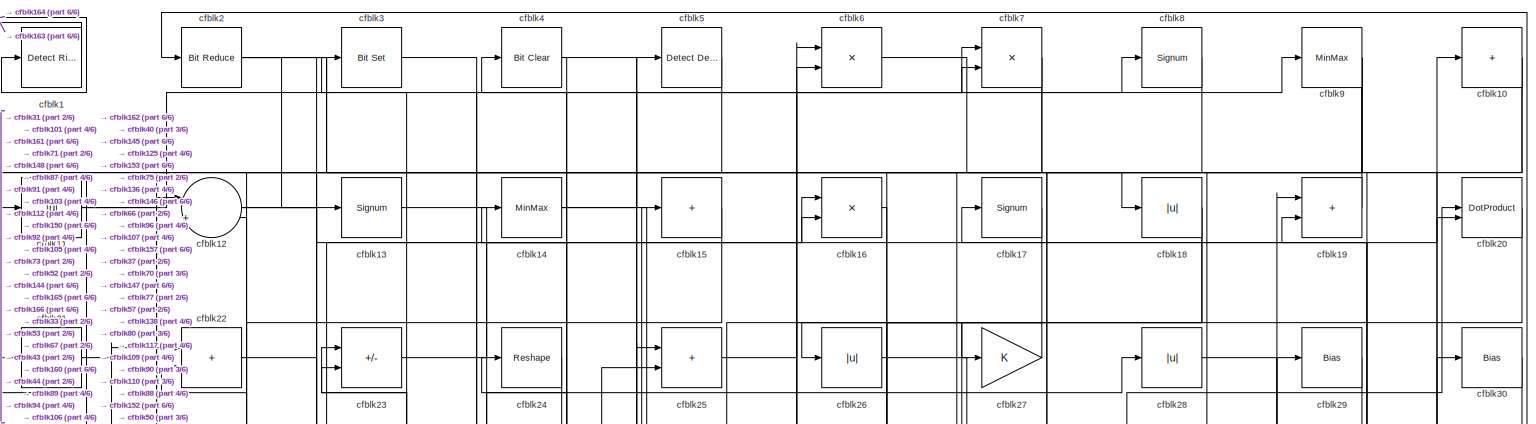
[diagram: root canvas - part 1/6, full width, top band]
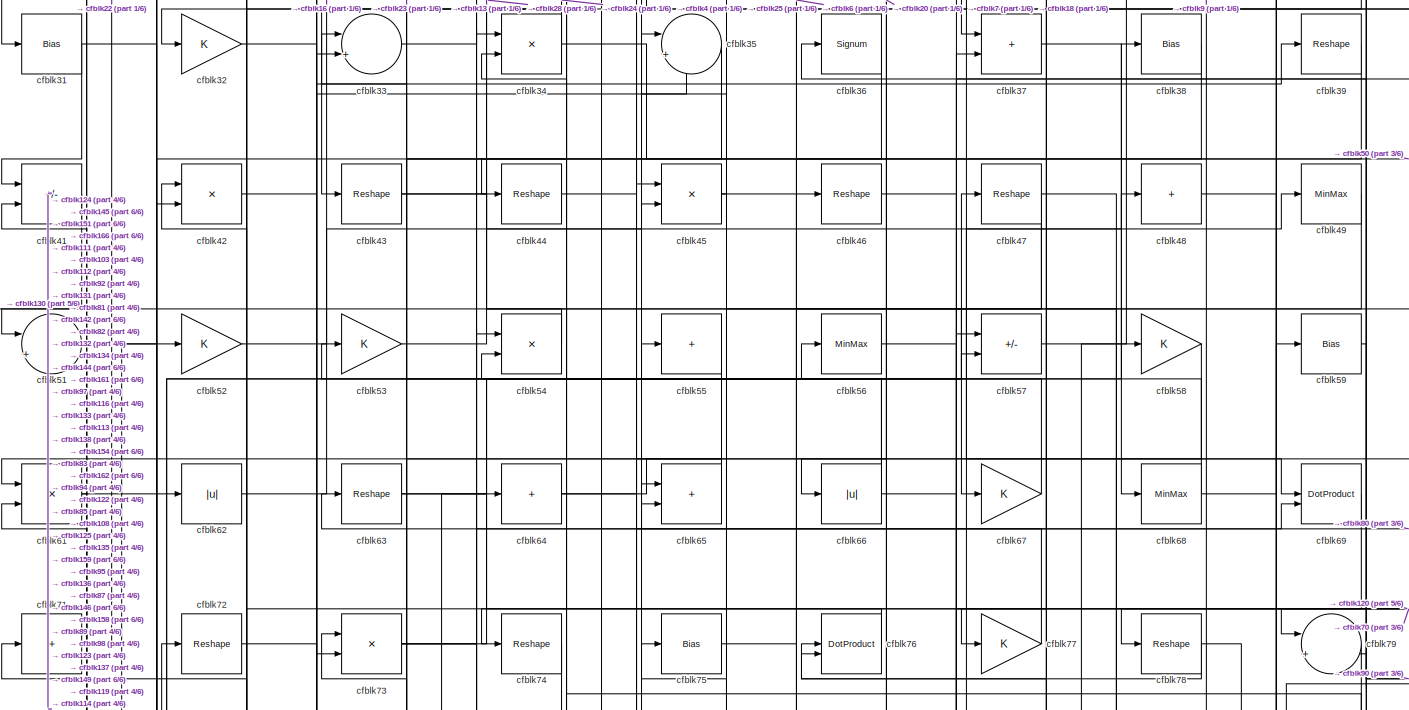
[diagram: root canvas - part 2/6, full width, top band]
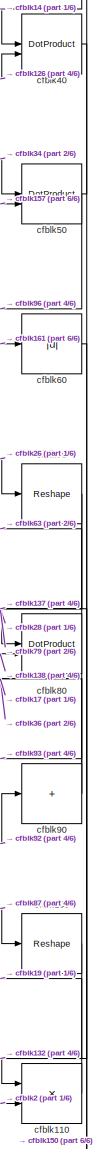
[diagram: root canvas - part 3/6, middle right region]
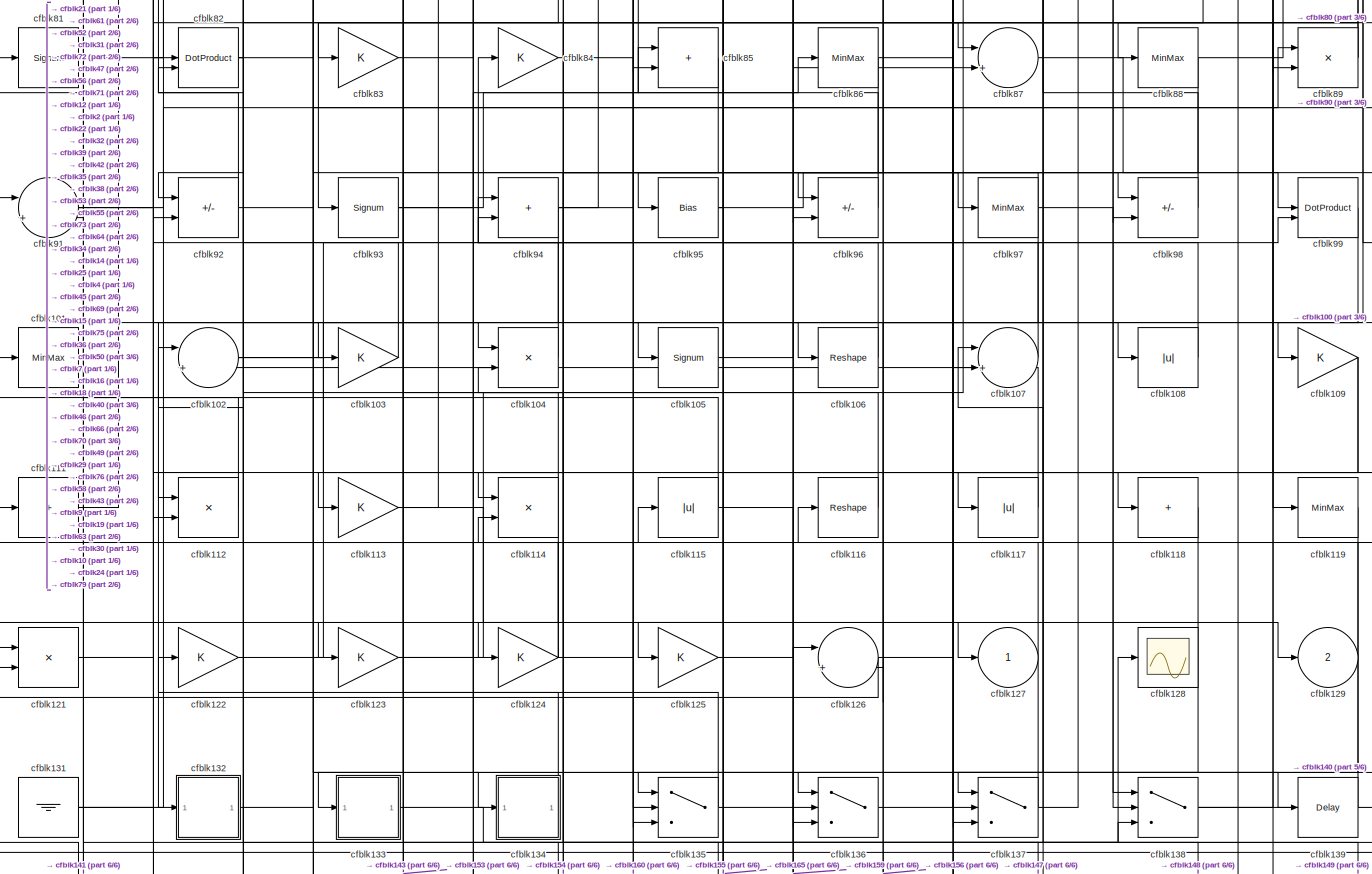
[diagram: root canvas - part 4/6, full width, middle band]
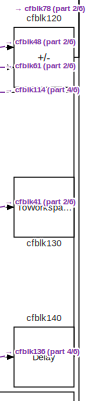
[diagram: root canvas - part 5/6, bottom right region]
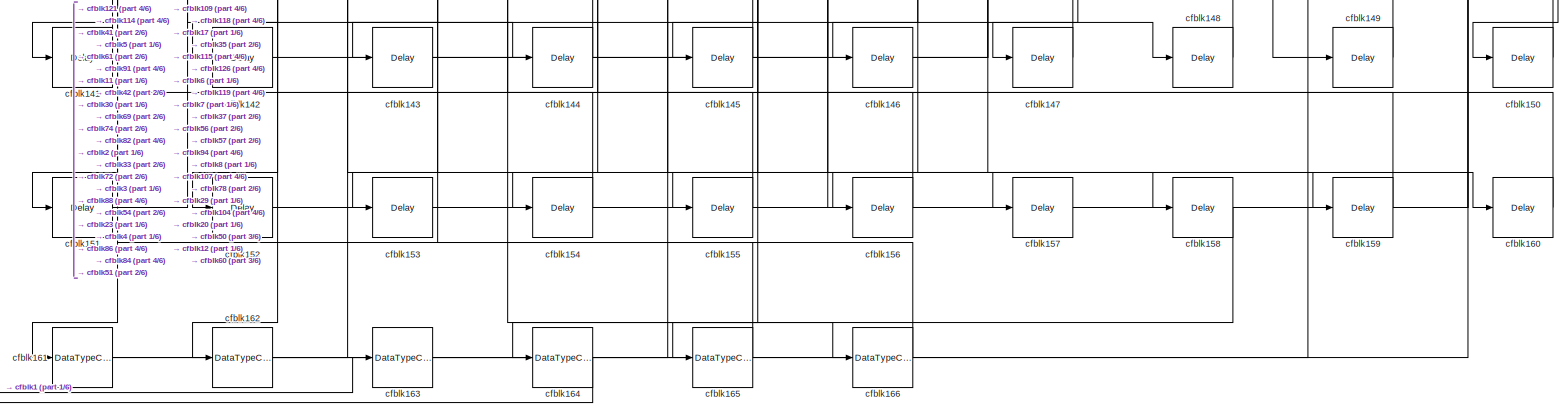
[diagram: root canvas - part 6/6, full width, bottom band]
MODEL slx_dc64c7f7db8e
KIND model
CONFIG AbsTol = auto
CONFIG EnableMultiTasking = off
CONFIG FixedStep = auto
CONFIG MaxStep = auto
CONFIG MinStep = auto
CONFIG RelTol = 1e-3
CONFIG SampleTimeConstraint = Unconstrained
CONFIG SolverName = VariableStepAuto
CONFIG StartTime = 0.0
CONFIG StopTime = 10.0
BLOCK [Reference] cfblk1  REF=hdlsllib/Logic and Bit
Operations/Detect Rise
Nonnegative
  SourceBlock = hdlsllib/Logic and Bit\nOperations/Detect Rise\nNonnegative
  SourceType = Detect Rise Nonnegative
BLOCK [Sum] cfblk10
  IconShape = rectangular
  Inputs = +
BLOCK [Reshape] cfblk100
BLOCK [MinMax] cfblk101
BLOCK [Sum] cfblk102
  Inputs = |++
BLOCK [Gain] cfblk103
BLOCK [Product] cfblk104
  Inputs = */
  RndMeth = Zero
  SaturateOnIntegerOverflow = on
BLOCK [Signum] cfblk105
BLOCK [Reshape] cfblk106
BLOCK [Sum] cfblk107
  Inputs = |++
BLOCK [Abs] cfblk108
  SaturateOnIntegerOverflow = off
BLOCK [Gain] cfblk109
BLOCK [Abs] cfblk11
  SaturateOnIntegerOverflow = off
BLOCK [Product] cfblk110
  Inputs = */
  RndMeth = Zero
  SaturateOnIntegerOverflow = on
BLOCK [Sum] cfblk111
  IconShape = rectangular
  Inputs = +
BLOCK [Product] cfblk112
  Inputs = */
  RndMeth = Zero
  SaturateOnIntegerOverflow = on
BLOCK [Gain] cfblk113
BLOCK [Product] cfblk114
  Inputs = */
  RndMeth = Zero
  SaturateOnIntegerOverflow = on
BLOCK [Abs] cfblk115
  SaturateOnIntegerOverflow = off
BLOCK [Reshape] cfblk116
BLOCK [Abs] cfblk117
  SaturateOnIntegerOverflow = off
BLOCK [Sum] cfblk118
  IconShape = rectangular
  Inputs = +
BLOCK [MinMax] cfblk119
BLOCK [Sum] cfblk12
  Inputs = |++
BLOCK [Sum] cfblk120
  IconShape = rectangular
  Inputs = +-
BLOCK [Product] cfblk121
  Inputs = */
  RndMeth = Zero
  SaturateOnIntegerOverflow = on
BLOCK [Gain] cfblk122
BLOCK [Gain] cfblk123
BLOCK [Gain] cfblk124
BLOCK [Gain] cfblk125
BLOCK [Sum] cfblk126
  Inputs = |++
BLOCK [Outport] cfblk127
  VectorParamsAs1DForOutWhenUnconnected = off
BLOCK [Scope] cfblk128
  Floating = off
  NumInputPorts = 1
  ScopeSpecificationString = Simulink.scopes.TimeScopeBlockCfg('CurrentConfiguration', extmgr.ConfigurationSet(extmgr.Configuration('Core','General UI',true),extmgr.Configuration('Core','Source UI',true),extmgr.Configuration('Sources','WiredSimulink',true,'DataLoggingVariableName','ScopeData2','DataLoggingSaveFormat','Array','DataLoggingLimitDataPoints',true,'DataLoggingDecimation','1'),extmgr.Configuration('Visuals','Time Do...<+868ch>
BLOCK [Outport] cfblk129
  Port = 2
  VectorParamsAs1DForOutWhenUnconnected = off
BLOCK [Signum] cfblk13
BLOCK [ToWorkspace] cfblk130
  MaxDataPoints = inf
  SampleTime = -1
  SaveFormat = Timeseries
  VariableName = simout
BLOCK [Ground] cfblk131
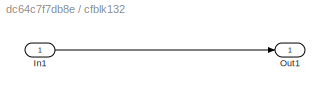
BLOCK [SubSystem] cfblk132
  LibrarySourceBlock = hdlsllib/Ports &\nSubsystems/Subsystem
BLOCK [Inport] cfblk132/In1
BLOCK [Outport] cfblk132/Out1
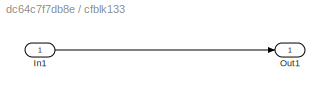
BLOCK [SubSystem] cfblk133
  LibrarySourceBlock = hdlsllib/Ports &\nSubsystems/Subsystem
BLOCK [Inport] cfblk133/In1
BLOCK [Outport] cfblk133/Out1
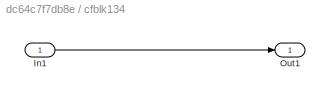
BLOCK [SubSystem] cfblk134
  LibrarySourceBlock = hdlsllib/Ports &\nSubsystems/Subsystem
BLOCK [Inport] cfblk134/In1
BLOCK [Outport] cfblk134/Out1
BLOCK [Switch] cfblk135
  InputSameDT = off
  SaturateOnIntegerOverflow = off
BLOCK [Switch] cfblk136
  InputSameDT = off
  SaturateOnIntegerOverflow = off
BLOCK [Switch] cfblk137
  InputSameDT = off
  SaturateOnIntegerOverflow = off
BLOCK [Switch] cfblk138
  InputSameDT = off
  SaturateOnIntegerOverflow = off
BLOCK [Delay] cfblk139
  InputPortMap = u0
  SampleTime = 1
BLOCK [MinMax] cfblk14
BLOCK [Delay] cfblk140
  InputPortMap = u0
  SampleTime = 1
BLOCK [Delay] cfblk141
  InputPortMap = u0
  SampleTime = 1
BLOCK [Delay] cfblk142
  InputPortMap = u0
  SampleTime = 1
BLOCK [Delay] cfblk143
  InputPortMap = u0
  SampleTime = 1
BLOCK [Delay] cfblk144
  InputPortMap = u0
  SampleTime = 1
BLOCK [Delay] cfblk145
  InputPortMap = u0
  SampleTime = 1
BLOCK [Delay] cfblk146
  InputPortMap = u0
  SampleTime = 1
BLOCK [Delay] cfblk147
  InputPortMap = u0
  SampleTime = 1
BLOCK [Delay] cfblk148
  InputPortMap = u0
  SampleTime = 1
BLOCK [Delay] cfblk149
  InputPortMap = u0
  SampleTime = 1
BLOCK [Sum] cfblk15
  IconShape = rectangular
  Inputs = +
BLOCK [Delay] cfblk150
  InputPortMap = u0
  SampleTime = 1
BLOCK [Delay] cfblk151
  InputPortMap = u0
  SampleTime = 1
BLOCK [Delay] cfblk152
  InputPortMap = u0
  SampleTime = 1
BLOCK [Delay] cfblk153
  InputPortMap = u0
  SampleTime = 1
BLOCK [Delay] cfblk154
  InputPortMap = u0
  SampleTime = 1
BLOCK [Delay] cfblk155
  InputPortMap = u0
  SampleTime = 1
BLOCK [Delay] cfblk156
  InputPortMap = u0
  SampleTime = 1
BLOCK [Delay] cfblk157
  InputPortMap = u0
  SampleTime = 1
BLOCK [Delay] cfblk158
  InputPortMap = u0
  SampleTime = 1
BLOCK [Delay] cfblk159
  InputPortMap = u0
  SampleTime = 1
BLOCK [Product] cfblk16
  Inputs = */
  RndMeth = Zero
  SaturateOnIntegerOverflow = on
BLOCK [Delay] cfblk160
  InputPortMap = u0
  SampleTime = 1
BLOCK [DataTypeConversion] cfblk161
  RndMeth = Floor
  SaturateOnIntegerOverflow = off
BLOCK [DataTypeConversion] cfblk162
  OutDataTypeStr = uint8
  RndMeth = Floor
  SaturateOnIntegerOverflow = off
BLOCK [DataTypeConversion] cfblk163
  OutDataTypeStr = uint8
  RndMeth = Floor
  SaturateOnIntegerOverflow = off
BLOCK [DataTypeConversion] cfblk164
  OutDataTypeStr = uint8
  RndMeth = Floor
  SaturateOnIntegerOverflow = off
BLOCK [DataTypeConversion] cfblk165
  OutDataTypeStr = boolean
  RndMeth = Floor
  SaturateOnIntegerOverflow = off
BLOCK [DataTypeConversion] cfblk166
  OutDataTypeStr = uint8
  RndMeth = Floor
  SaturateOnIntegerOverflow = off
BLOCK [Signum] cfblk17
BLOCK [Abs] cfblk18
  SaturateOnIntegerOverflow = off
BLOCK [Sum] cfblk19
  IconShape = rectangular
BLOCK [Reference] cfblk2  REF=hdlsllib/Logic and Bit
Operations/Bit Reduce
  SourceBlock = hdlsllib/Logic and Bit\nOperations/Bit Reduce
  SourceType = Bit Reduce
BLOCK [DotProduct] cfblk20
  OutDataTypeStr = Inherit: Inherit via internal rule
BLOCK [Bias] cfblk21
  Bias = 0.0
  SaturateOnIntegerOverflow = off
BLOCK [Sum] cfblk22
  IconShape = rectangular
BLOCK [Sum] cfblk23
  IconShape = rectangular
  Inputs = +-
BLOCK [Reshape] cfblk24
BLOCK [Sum] cfblk25
  IconShape = rectangular
BLOCK [Abs] cfblk26
  SaturateOnIntegerOverflow = off
BLOCK [Gain] cfblk27
BLOCK [Abs] cfblk28
  SaturateOnIntegerOverflow = off
BLOCK [Bias] cfblk29
  Bias = 0.0
  SaturateOnIntegerOverflow = off
BLOCK [Reference] cfblk3  REF=simulink/Logic and Bit
Operations/Bit Set
  LibrarySourceBlock = hdlsllib/Logic and Bit\nOperations/Bit Set
  SourceBlock = simulink/Logic and Bit\nOperations/Bit Set
  SourceType = Bit Set
BLOCK [Bias] cfblk30
  Bias = 0.0
  SaturateOnIntegerOverflow = off
BLOCK [Bias] cfblk31
  Bias = 0.0
  SaturateOnIntegerOverflow = off
BLOCK [Gain] cfblk32
BLOCK [Sum] cfblk33
  Inputs = |++
BLOCK [Product] cfblk34
  Inputs = */
  RndMeth = Zero
  SaturateOnIntegerOverflow = on
BLOCK [Sum] cfblk35
  Inputs = |++
BLOCK [Signum] cfblk36
BLOCK [Sum] cfblk37
  IconShape = rectangular
BLOCK [Bias] cfblk38
  Bias = 0.0
  SaturateOnIntegerOverflow = off
BLOCK [Reshape] cfblk39
BLOCK [Reference] cfblk4  REF=simulink/Logic and Bit
Operations/Bit Clear
  LibrarySourceBlock = hdlsllib/Logic and Bit\nOperations/Bit Clear
  SourceBlock = simulink/Logic and Bit\nOperations/Bit Clear
  SourceType = Bit Clear
BLOCK [DotProduct] cfblk40
  OutDataTypeStr = Inherit: Inherit via internal rule
BLOCK [Sum] cfblk41
  IconShape = rectangular
  Inputs = +-
BLOCK [Product] cfblk42
  Inputs = */
  RndMeth = Zero
  SaturateOnIntegerOverflow = on
BLOCK [Reshape] cfblk43
BLOCK [Reshape] cfblk44
BLOCK [Product] cfblk45
  Inputs = */
  RndMeth = Zero
  SaturateOnIntegerOverflow = on
BLOCK [Reshape] cfblk46
BLOCK [Reshape] cfblk47
BLOCK [Sum] cfblk48
  IconShape = rectangular
  Inputs = +
BLOCK [MinMax] cfblk49
BLOCK [Reference] cfblk5  REF=simulink/Logic and Bit
Operations/Detect
Decrease
  LibrarySourceBlock = hdlsllib/Logic and Bit\nOperations/Detect\nDecrease
  SourceBlock = simulink/Logic and Bit\nOperations/Detect\nDecrease
  SourceType = Detect Decrease
BLOCK [DotProduct] cfblk50
  OutDataTypeStr = Inherit: Inherit via internal rule
BLOCK [Sum] cfblk51
  Inputs = |++
BLOCK [Gain] cfblk52
BLOCK [Gain] cfblk53
BLOCK [Product] cfblk54
  Inputs = */
  RndMeth = Zero
  SaturateOnIntegerOverflow = on
BLOCK [Sum] cfblk55
  IconShape = rectangular
  Inputs = +
BLOCK [MinMax] cfblk56
BLOCK [Sum] cfblk57
  IconShape = rectangular
  Inputs = +-
BLOCK [Gain] cfblk58
BLOCK [Bias] cfblk59
  Bias = 0.0
  SaturateOnIntegerOverflow = off
BLOCK [Product] cfblk6
  Inputs = */
  RndMeth = Zero
  SaturateOnIntegerOverflow = on
BLOCK [Abs] cfblk60
  SaturateOnIntegerOverflow = off
BLOCK [Product] cfblk61
  Inputs = */
  RndMeth = Zero
  SaturateOnIntegerOverflow = on
BLOCK [Abs] cfblk62
  SaturateOnIntegerOverflow = off
BLOCK [Reshape] cfblk63
BLOCK [Sum] cfblk64
  IconShape = rectangular
  Inputs = +
BLOCK [Sum] cfblk65
  IconShape = rectangular
BLOCK [Abs] cfblk66
  SaturateOnIntegerOverflow = off
BLOCK [Gain] cfblk67
BLOCK [MinMax] cfblk68
BLOCK [DotProduct] cfblk69
  OutDataTypeStr = Inherit: Inherit via internal rule
BLOCK [Product] cfblk7
  Inputs = */
  RndMeth = Zero
  SaturateOnIntegerOverflow = on
BLOCK [Reshape] cfblk70
BLOCK [Sum] cfblk71
  IconShape = rectangular
  Inputs = +
BLOCK [Reshape] cfblk72
BLOCK [Product] cfblk73
  Inputs = */
  RndMeth = Zero
  SaturateOnIntegerOverflow = on
BLOCK [Reshape] cfblk74
BLOCK [Bias] cfblk75
  Bias = 0.0
  SaturateOnIntegerOverflow = off
BLOCK [DotProduct] cfblk76
  OutDataTypeStr = Inherit: Inherit via internal rule
BLOCK [Gain] cfblk77
BLOCK [Reshape] cfblk78
BLOCK [Sum] cfblk79
  Inputs = |++
BLOCK [Signum] cfblk8
BLOCK [DotProduct] cfblk80
  OutDataTypeStr = Inherit: Inherit via internal rule
BLOCK [Signum] cfblk81
BLOCK [DotProduct] cfblk82
  OutDataTypeStr = Inherit: Inherit via internal rule
BLOCK [Gain] cfblk83
BLOCK [Gain] cfblk84
BLOCK [Sum] cfblk85
  IconShape = rectangular
BLOCK [MinMax] cfblk86
BLOCK [Sum] cfblk87
  Inputs = |++
BLOCK [MinMax] cfblk88
BLOCK [Product] cfblk89
  Inputs = */
  RndMeth = Zero
  SaturateOnIntegerOverflow = on
BLOCK [MinMax] cfblk9
BLOCK [Sum] cfblk90
  IconShape = rectangular
  Inputs = +
BLOCK [Sum] cfblk91
  Inputs = |++
BLOCK [Sum] cfblk92
  IconShape = rectangular
  Inputs = +-
BLOCK [Signum] cfblk93
BLOCK [Sum] cfblk94
  IconShape = rectangular
BLOCK [Bias] cfblk95
  Bias = 0.0
  SaturateOnIntegerOverflow = off
BLOCK [Sum] cfblk96
  IconShape = rectangular
  Inputs = +-
BLOCK [MinMax] cfblk97
BLOCK [Sum] cfblk98
  IconShape = rectangular
  Inputs = +-
BLOCK [DotProduct] cfblk99
  OutDataTypeStr = Inherit: Inherit via internal rule
LINE cfblk100:1 -> cfblk132:1
LINE cfblk101:1 -> cfblk21:1
NET cfblk102:1 -> cfblk104:1, cfblk135:3
LINE cfblk103:1 -> cfblk22:2
LINE cfblk104:1 -> cfblk94:1
LINE cfblk105:1 -> cfblk108:1
LINE cfblk106:1 -> cfblk84:1
LINE cfblk107:1 -> cfblk14:1
LINE cfblk108:1 -> cfblk75:1
NET cfblk109:1 -> cfblk143:1, cfblk165:1
NET cfblk10:1 -> cfblk109:1, cfblk92:1
LINE cfblk110:1 -> cfblk19:2
LINE cfblk111:1 -> cfblk52:1
LINE cfblk112:1 -> cfblk81:1
NET cfblk113:1 -> cfblk127:1, cfblk64:1
NET cfblk114:1 -> cfblk141:1, cfblk71:1
NET cfblk115:1 -> cfblk101:1, cfblk159:1
LINE cfblk116:1 -> cfblk73:1
LINE cfblk117:1 -> cfblk102:2
LINE cfblk118:1 -> cfblk155:1
LINE cfblk119:1 -> cfblk156:1
NET cfblk11:1 -> cfblk148:1, cfblk8:1
LINE cfblk120:1 -> cfblk78:1
LINE cfblk121:1 -> cfblk82:1
LINE cfblk122:1 -> cfblk45:1
NET cfblk123:1 -> cfblk115:1, cfblk49:1
NET cfblk124:1 -> cfblk111:1, cfblk129:1, cfblk61:2
LINE cfblk125:1 -> cfblk7:1
NET cfblk126:1 -> cfblk40:2, cfblk91:1
NET cfblk12:1 -> cfblk105:1, cfblk16:2
NET cfblk131:1 -> cfblk47:1, cfblk99:2
LINE cfblk132/In1:1 -> cfblk132/Out1:1
LINE cfblk132:1 -> cfblk39:1
LINE cfblk133/In1:1 -> cfblk133/Out1:1
LINE cfblk133:1 -> cfblk128:1
LINE cfblk134/In1:1 -> cfblk134/Out1:1
LINE cfblk134:1 -> cfblk122:1
NET cfblk135:1 -> cfblk138:3, cfblk53:1
LINE cfblk136:1 -> cfblk140:1
NET cfblk137:1 -> cfblk116:1, cfblk58:1
NET cfblk138:1 -> cfblk19:1, cfblk80:2
LINE cfblk139:1 -> cfblk102:1
LINE cfblk13:1 -> cfblk67:1
LINE cfblk140:1 -> cfblk114:2
LINE cfblk141:1 -> cfblk121:2
LINE cfblk142:1 -> cfblk37:2
LINE cfblk143:1 -> cfblk126:1
LINE cfblk144:1 -> cfblk23:2
LINE cfblk145:1 -> cfblk51:2
LINE cfblk146:1 -> cfblk57:1
LINE cfblk147:1 -> cfblk94:2
LINE cfblk148:1 -> cfblk107:1
LINE cfblk149:1 -> cfblk104:2
NET cfblk14:1 -> cfblk40:1, cfblk9:1
LINE cfblk150:1 -> cfblk12:2
LINE cfblk151:1 -> cfblk42:2
LINE cfblk152:1 -> cfblk20:2
LINE cfblk153:1 -> cfblk6:2
LINE cfblk154:1 -> cfblk54:1
LINE cfblk155:1 -> cfblk82:2
LINE cfblk156:1 -> cfblk91:2
LINE cfblk157:1 -> cfblk50:2
LINE cfblk158:1 -> cfblk164:1
LINE cfblk159:1 -> cfblk35:1
LINE cfblk15:1 -> cfblk112:1
LINE cfblk160:1 -> cfblk4:1
NET cfblk161:1 -> cfblk33:2, cfblk60:1
LINE cfblk162:1 -> cfblk5:1
LINE cfblk163:1 -> cfblk29:1
LINE cfblk164:1 -> cfblk1:1
LINE cfblk165:1 -> cfblk3:1
LINE cfblk166:1 -> cfblk41:2
LINE cfblk16:1 -> cfblk136:1
LINE cfblk17:1 -> cfblk145:1
NET cfblk18:1 -> cfblk37:1, cfblk96:1
LINE cfblk19:1 -> cfblk11:1
LINE cfblk1:1 -> cfblk163:1
LINE cfblk20:1 -> cfblk66:1
LINE cfblk21:1 -> cfblk87:1
LINE cfblk22:1 -> cfblk136:3
LINE cfblk23:1 -> cfblk10:1
LINE cfblk24:1 -> cfblk43:1
LINE cfblk25:1 -> cfblk27:1
LINE cfblk26:1 -> cfblk70:1
LINE cfblk27:1 -> cfblk26:1
LINE cfblk28:1 -> cfblk80:1
LINE cfblk29:1 -> cfblk117:1
NET cfblk2:1 -> cfblk107:2, cfblk110:2, cfblk13:1, cfblk157:1
LINE cfblk30:1 -> cfblk152:1
NET cfblk31:1 -> cfblk103:1, cfblk41:1
LINE cfblk32:1 -> cfblk134:1
LINE cfblk33:1 -> cfblk7:2
NET cfblk34:1 -> cfblk32:1, cfblk50:1
LINE cfblk35:1 -> cfblk123:1
LINE cfblk36:1 -> cfblk136:2
LINE cfblk37:1 -> cfblk68:1
LINE cfblk38:1 -> cfblk113:1
LINE cfblk39:1 -> cfblk112:2
LINE cfblk3:1 -> cfblk166:1
LINE cfblk40:1 -> cfblk110:1
LINE cfblk41:1 -> cfblk130:1
LINE cfblk42:1 -> cfblk97:1
NET cfblk43:1 -> cfblk138:1, cfblk45:2
LINE cfblk44:1 -> cfblk25:1
NET cfblk45:1 -> cfblk125:1, cfblk87:2
LINE cfblk46:1 -> cfblk98:1
NET cfblk47:1 -> cfblk135:1, cfblk137:3, cfblk98:2
LINE cfblk48:1 -> cfblk120:1
LINE cfblk49:1 -> cfblk137:1
NET cfblk4:1 -> cfblk106:1, cfblk44:1
NET cfblk50:1 -> cfblk2:1, cfblk96:2
LINE cfblk51:1 -> cfblk62:1
LINE cfblk52:1 -> cfblk16:1
LINE cfblk53:1 -> cfblk28:1
LINE cfblk54:1 -> cfblk51:1
LINE cfblk55:1 -> cfblk133:1
LINE cfblk56:1 -> cfblk158:1
LINE cfblk57:1 -> cfblk20:1
LINE cfblk58:1 -> cfblk85:2
LINE cfblk59:1 -> cfblk79:2
LINE cfblk5:1 -> cfblk161:1
LINE cfblk60:1 -> cfblk150:1
NET cfblk61:1 -> cfblk120:2, cfblk151:1
LINE cfblk62:1 -> cfblk38:1
NET cfblk63:1 -> cfblk119:1, cfblk48:1
NET cfblk64:1 -> cfblk57:2, cfblk69:1
LINE cfblk65:1 -> cfblk61:1
NET cfblk66:1 -> cfblk23:1, cfblk34:2, cfblk89:2
LINE cfblk67:1 -> cfblk33:1
NET cfblk68:1 -> cfblk54:2, cfblk59:1
LINE cfblk69:1 -> cfblk142:1
LINE cfblk6:1 -> cfblk18:1
NET cfblk70:1 -> cfblk137:2, cfblk79:1
LINE cfblk71:1 -> cfblk22:1
LINE cfblk72:1 -> cfblk144:1
NET cfblk73:1 -> cfblk138:2, cfblk46:1, cfblk65:2
LINE cfblk74:1 -> cfblk162:1
LINE cfblk75:1 -> cfblk6:1
LINE cfblk76:1 -> cfblk74:1
LINE cfblk77:1 -> cfblk65:1
NET cfblk78:1 -> cfblk149:1, cfblk76:2
LINE cfblk79:1 -> cfblk114:1
NET cfblk7:1 -> cfblk146:1, cfblk31:1
NET cfblk80:1 -> cfblk63:1, cfblk93:1
LINE cfblk81:1 -> cfblk56:1
NET cfblk82:1 -> cfblk35:2, cfblk42:1
LINE cfblk83:1 -> cfblk34:1
LINE cfblk84:1 -> cfblk160:1
LINE cfblk85:1 -> cfblk124:1
NET cfblk86:1 -> cfblk118:1, cfblk154:1
LINE cfblk87:1 -> cfblk100:1
NET cfblk88:1 -> cfblk153:1, cfblk30:1
NET cfblk89:1 -> cfblk24:1, cfblk83:1
LINE cfblk8:1 -> cfblk147:1
NET cfblk90:1 -> cfblk17:1, cfblk36:1
NET cfblk91:1 -> cfblk12:1, cfblk89:1
NET cfblk92:1 -> cfblk72:1, cfblk90:1
NET cfblk93:1 -> cfblk85:1, cfblk86:1
NET cfblk94:1 -> cfblk121:1, cfblk25:2, cfblk69:2
NET cfblk95:1 -> cfblk55:1, cfblk99:1
LINE cfblk96:1 -> cfblk15:1
NET cfblk97:1 -> cfblk135:2, cfblk139:1, cfblk95:1
LINE cfblk98:1 -> cfblk76:1
LINE cfblk99:1 -> cfblk126:2
NET cfblk9:1 -> cfblk73:2, cfblk77:1, cfblk88:1, cfblk92:2
note: NET lines group one-source signal fan-out (src -> all destinations, sorted); 1:1 wires keep LINE
